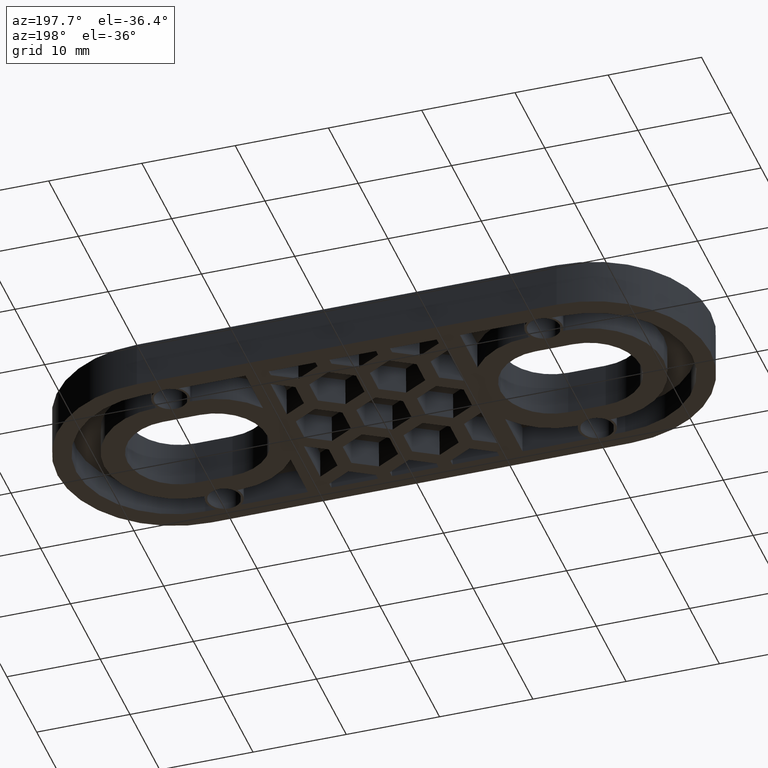
[diagram: clean part render]
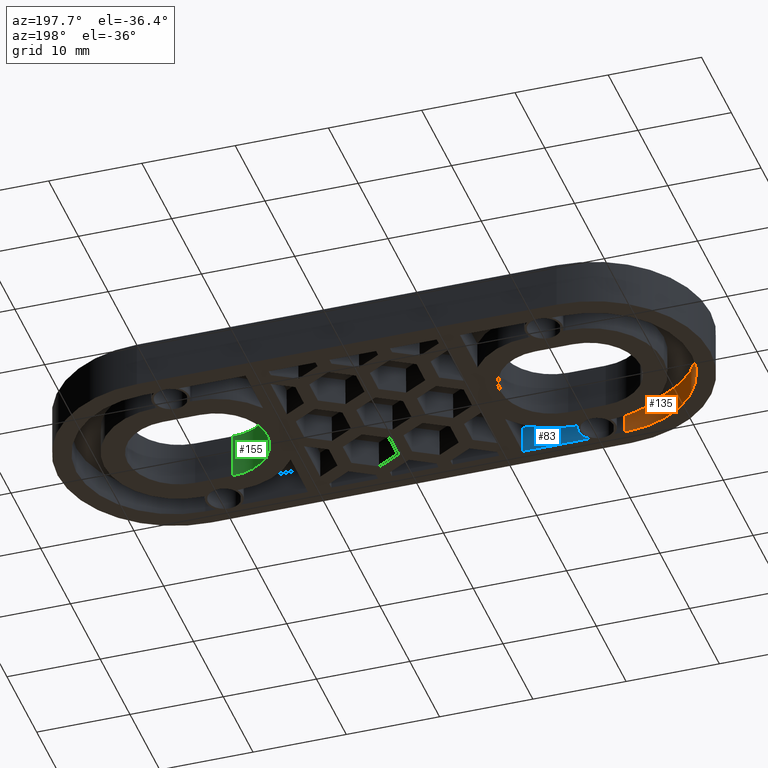
[diagram: same view with three faces highlighted in distinct colors, each labeled with its STEP entity id]
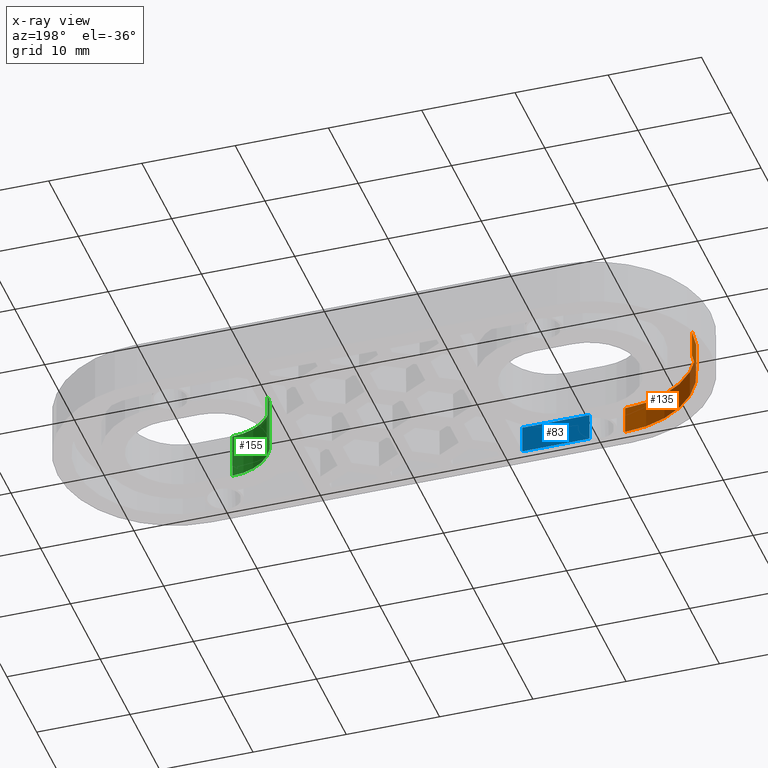
[diagram: x-ray of the same camera — body ghosted, the three highlighted faces saturated]
A machine part, auxiliary view with three faces highlighted in distinct colors.
The next image is the same camera in x-ray (body ghosted, the three faces saturated) — at least one of them is partly hidden behind the body in this view.
Their STEP definitions:

[orange] entity #135 — the highlighted cylindrical surface (partial cylindrical patch) has radius 10.5 mm, axis along (0, -0, -1).
#135 = ADVANCED_FACE( '', ( #450 ), #451, .F. );
#450 = FACE_OUTER_BOUND( '', #926, .T. );
#451 = CYLINDRICAL_SURFACE( '', #927, 10.5000000000000 );
#926 = EDGE_LOOP( '', ( #1886, #1887, #1888, #1889 ) );
#927 = AXIS2_PLACEMENT_3D( '', #1890, #1891, #1892 );
#1886 = ORIENTED_EDGE( '', *, *, #3342, .T. );
#1887 = ORIENTED_EDGE( '', *, *, #3076, .F. );
#1888 = ORIENTED_EDGE( '', *, *, #3123, .F. );
#1889 = ORIENTED_EDGE( '', *, *, #3232, .F. );
#1890 = CARTESIAN_POINT( '', ( -22.5000000000000, 0.000000000000000, -2.99999999997629 ) );
#1891 = DIRECTION( '', ( 0.000000000000000, -6.12303176911189E-017, -1.00000000000000 ) );
#1892 = DIRECTION( '', ( 0.000000000000000, 1.00000000000000, -6.12303176911189E-017 ) );
#3076 = EDGE_CURVE( '', #3712, #3714, #3715, .T. );
#3123 = EDGE_CURVE( '', #3801, #3712, #3803, .T. );
#3232 = EDGE_CURVE( '', #3996, #3801, #3998, .F. );
#3342 = EDGE_CURVE( '', #3996, #3714, #4195, .T. );
#3712 = VERTEX_POINT( '', #4689 );
#3714 = VERTEX_POINT( '', #4692 );
#3715 = CIRCLE( '', #4693, 10.5000000000000 );
#3801 = VERTEX_POINT( '', #4821 );
#3803 = LINE( '', #4824, #4825 );
#3996 = VERTEX_POINT( '', #5108 );
#3998 = CIRCLE( '', #5110, 10.5000000000000 );
#4195 = LINE( '', #5398, #5399 );
#4689 = CARTESIAN_POINT( '', ( -22.5000000000000, -10.5000000000000, 3.00000000000000 ) );
#4692 = CARTESIAN_POINT( '', ( -33.0000000000000, -1.73472347597681E-015, 3.00000000000000 ) );
#4693 = AXIS2_PLACEMENT_3D( '', #5916, #5917, #5918 );
#4821 = CARTESIAN_POINT( '', ( -22.5000000000000, -10.5000000000000, -1.22460635382238E-016 ) );
#4824 = CARTESIAN_POINT( '', ( -22.5000000000000, -10.5000000000000, -2.99999999997629 ) );
#4825 = VECTOR( '', #5971, 1000.00000000000 );
#5108 = CARTESIAN_POINT( '', ( -33.0000000000000, -1.73472347597681E-015, -7.65378971138986E-016 ) );
#5110 = AXIS2_PLACEMENT_3D( '', #6116, #6117, #6118 );
#5398 = CARTESIAN_POINT( '', ( -33.0000000000000, -1.73472347597681E-015, -2.99999999997629 ) );
#5399 = VECTOR( '', #6264, 1000.00000000000 );
#5916 = CARTESIAN_POINT( '', ( -22.5000000000000, 0.000000000000000, 3.00000000000000 ) );
#5917 = DIRECTION( '', ( 0.000000000000000, -6.12303176911189E-017, -1.00000000000000 ) );
#5918 = DIRECTION( '', ( 0.000000000000000, 1.00000000000000, -6.12303176911189E-017 ) );
#5971 = DIRECTION( '', ( 0.000000000000000, 6.12303176911189E-017, 1.00000000000000 ) );
#6116 = CARTESIAN_POINT( '', ( -22.5000000000000, 0.000000000000000, -7.65378971138986E-016 ) );
#6117 = DIRECTION( '', ( 0.000000000000000, -6.12303176911189E-017, -1.00000000000000 ) );
#6118 = DIRECTION( '', ( 0.000000000000000, 1.00000000000000, -6.12303176911189E-017 ) );
#6264 = DIRECTION( '', ( 0.000000000000000, 6.12303176911189E-017, 1.00000000000000 ) );

[blue] entity #83 — the highlighted planar face has unit normal (0, 1, -0).
#83 = ADVANCED_FACE( '', ( #317 ), #318, .T. );
#317 = FACE_OUTER_BOUND( '', #793, .T. );
#318 = PLANE( '', #794 );
#793 = EDGE_LOOP( '', ( #1345, #1346, #1347, #1348 ) );
#794 = AXIS2_PLACEMENT_3D( '', #1349, #1350, #1351 );
#1345 = ORIENTED_EDGE( '', *, *, #3029, .F. );
#1346 = ORIENTED_EDGE( '', *, *, #3030, .F. );
#1347 = ORIENTED_EDGE( '', *, *, #3031, .T. );
#1348 = ORIENTED_EDGE( '', *, *, #3032, .F. );
#1349 = CARTESIAN_POINT( '', ( 22.5000000000000, -10.5000000000000, -2.99999999997629 ) );
#1350 = DIRECTION( '', ( 0.000000000000000, 1.00000000000000, -6.12303176911189E-017 ) );
#1351 = DIRECTION( '', ( 1.00000000000000, 0.000000000000000, 0.000000000000000 ) );
#3029 = EDGE_CURVE( '', #3627, #3628, #3629, .T. );
#3030 = EDGE_CURVE( '', #3630, #3627, #3631, .T. );
#3031 = EDGE_CURVE( '', #3630, #3632, #3633, .T. );
#3032 = EDGE_CURVE( '', #3628, #3632, #3634, .T. );
#3627 = VERTEX_POINT( '', #4570 );
#3628 = VERTEX_POINT( '', #4571 );
#3629 = LINE( '', #4572, #4573 );
#3630 = VERTEX_POINT( '', #4574 );
#3631 = LINE( '', #4575, #4576 );
#3632 = VERTEX_POINT( '', #4577 );
#3633 = LINE( '', #4578, #4579 );
#3634 = LINE( '', #4580, #4581 );
#4570 = CARTESIAN_POINT( '', ( -18.6771243444677, -10.5000000000000, 3.00000000000000 ) );
#4571 = CARTESIAN_POINT( '', ( -18.6771243444677, -10.5000000000000, -1.22460635382238E-016 ) );
#4572 = CARTESIAN_POINT( '', ( -18.6771243444677, -10.5000000000000, 3.00000000000000 ) );
#4573 = VECTOR( '', #5845, 1000.00000000000 );
#4574 = CARTESIAN_POINT( '', ( -11.5000000000000, -10.5000000000000, 3.00000000000000 ) );
#4575 = CARTESIAN_POINT( '', ( 22.5000000000000, -10.5000000000000, 3.00000000000000 ) );
#4576 = VECTOR( '', #5846, 1000.00000000000 );
#4577 = CARTESIAN_POINT( '', ( -11.5000000000000, -10.5000000000000, -1.22460635382238E-016 ) );
#4578 = CARTESIAN_POINT( '', ( -11.5000000000000, -10.5000000000000, 3.00000000000000 ) );
#4579 = VECTOR( '', #5847, 1000.00000000000 );
#4580 = CARTESIAN_POINT( '', ( 22.5000000000000, -10.5000000000000, -1.22460635382238E-016 ) );
#4581 = VECTOR( '', #5848, 1000.00000000000 );
#5845 = DIRECTION( '', ( 0.000000000000000, -6.12303176911189E-017, -1.00000000000000 ) );
#5846 = DIRECTION( '', ( -1.00000000000000, 0.000000000000000, 0.000000000000000 ) );
#5847 = DIRECTION( '', ( 0.000000000000000, -6.12303176911189E-017, -1.00000000000000 ) );
#5848 = DIRECTION( '', ( 1.00000000000000, 0.000000000000000, 0.000000000000000 ) );

[green] entity #155 — the highlighted cylindrical surface (partial cylindrical patch) has radius 5.5 mm, axis along (0, -0, -1).
#155 = ADVANCED_FACE( '', ( #490 ), #491, .F. );
#490 = FACE_OUTER_BOUND( '', #966, .T. );
#491 = CYLINDRICAL_SURFACE( '', #967, 5.50000000000000 );
#966 = EDGE_LOOP( '', ( #2026, #2027, #2028, #2029 ) );
#967 = AXIS2_PLACEMENT_3D( '', #2030, #2031, #2032 );
#2026 = ORIENTED_EDGE( '', *, *, #3358, .T. );
#2027 = ORIENTED_EDGE( '', *, *, #2986, .T. );
#2028 = ORIENTED_EDGE( '', *, *, #3359, .F. );
#2029 = ORIENTED_EDGE( '', *, *, #3329, .F. );
#2030 = CARTESIAN_POINT( '', ( 18.0000000000000, 3.46944695195361E-015, -1.00000000024407E-005 ) );
#2031 = DIRECTION( '', ( 0.000000000000000, -6.12303176911189E-017, -1.00000000000000 ) );
#2032 = DIRECTION( '', ( -5.78241158658935E-017, 1.00000000000000, -6.12303176911189E-017 ) );
#2986 = EDGE_CURVE( '', #3547, #3545, #3548, .T. );
#3329 = EDGE_CURVE( '', #4173, #4175, #4176, .T. );
#3358 = EDGE_CURVE( '', #4173, #3547, #4211, .T. );
#3359 = EDGE_CURVE( '', #4175, #3545, #4212, .T. );
#3545 = VERTEX_POINT( '', #4454 );
#3547 = VERTEX_POINT( '', #4457 );
#3548 = CIRCLE( '', #4458, 5.50000000000000 );
#4173 = VERTEX_POINT( '', #5368 );
#4175 = VERTEX_POINT( '', #5370 );
#4176 = CIRCLE( '', #5371, 5.50000000000000 );
#4211 = LINE( '', #5430, #5431 );
#4212 = LINE( '', #5432, #5433 );
#4454 = CARTESIAN_POINT( '', ( 18.0000000000000, -5.49999999999999, 5.00000499988362 ) );
#4457 = CARTESIAN_POINT( '', ( 12.5000000000000, 1.04083408558608E-014, 5.00000499988362 ) );
#4458 = AXIS2_PLACEMENT_3D( '', #5782, #5783, #5784 );
#5368 = CARTESIAN_POINT( '', ( 12.5000000000000, 1.21430643318377E-014, -7.65378971138987E-016 ) );
#5370 = CARTESIAN_POINT( '', ( 18.0000000000000, -5.49999999999999, -4.28612223837832E-016 ) );
#5371 = AXIS2_PLACEMENT_3D( '', #6241, #6242, #6243 );
#5430 = CARTESIAN_POINT( '', ( 12.5000000000000, 1.04083408558608E-014, -1.00000000024407E-005 ) );
#5431 = VECTOR( '', #6280, 1000.00000000000 );
#5432 = CARTESIAN_POINT( '', ( 18.0000000000000, -5.49999999999999, -1.00000000021039E-005 ) );
#5433 = VECTOR( '', #6281, 1000.00000000000 );
#5782 = CARTESIAN_POINT( '', ( 18.0000000000000, 3.46944695195361E-015, 5.00000499988362 ) );
#5783 = DIRECTION( '', ( 0.000000000000000, 6.12303176911189E-017, 1.00000000000000 ) );
#5784 = DIRECTION( '', ( 5.78241158658935E-017, -1.00000000000000, 6.12303176911189E-017 ) );
#6241 = CARTESIAN_POINT( '', ( 18.0000000000000, 3.46944695195361E-015, -7.65378971138986E-016 ) );
#6242 = DIRECTION( '', ( 0.000000000000000, 6.12303176911189E-017, 1.00000000000000 ) );
#6243 = DIRECTION( '', ( 0.000000000000000, -1.00000000000000, 6.12303176911189E-017 ) );
#6280 = DIRECTION( '', ( 0.000000000000000, 6.12303176911189E-017, 1.00000000000000 ) );
#6281 = DIRECTION( '', ( 0.000000000000000, 6.12303176911189E-017, 1.00000000000000 ) );